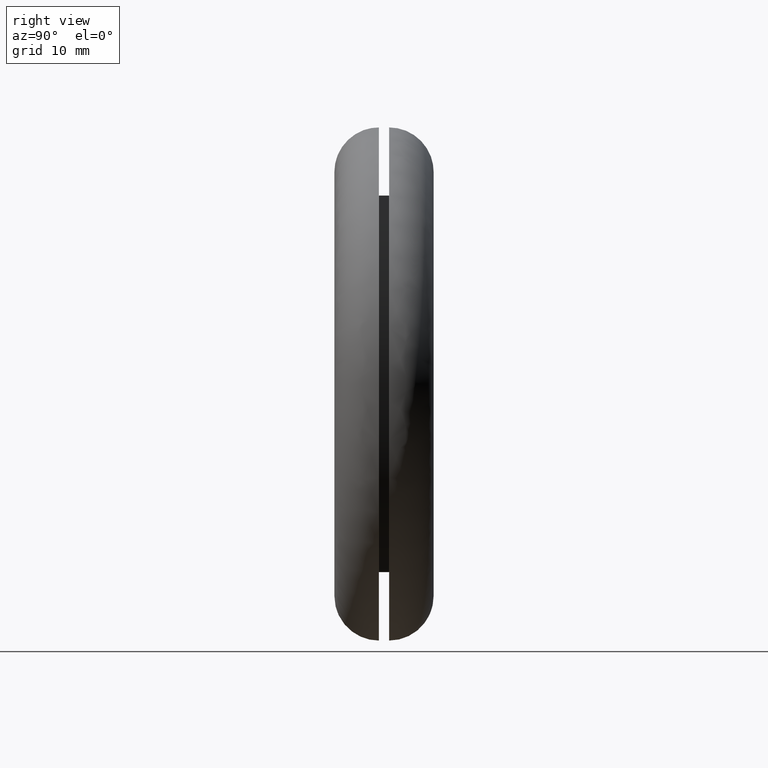
[diagram: clean part render]
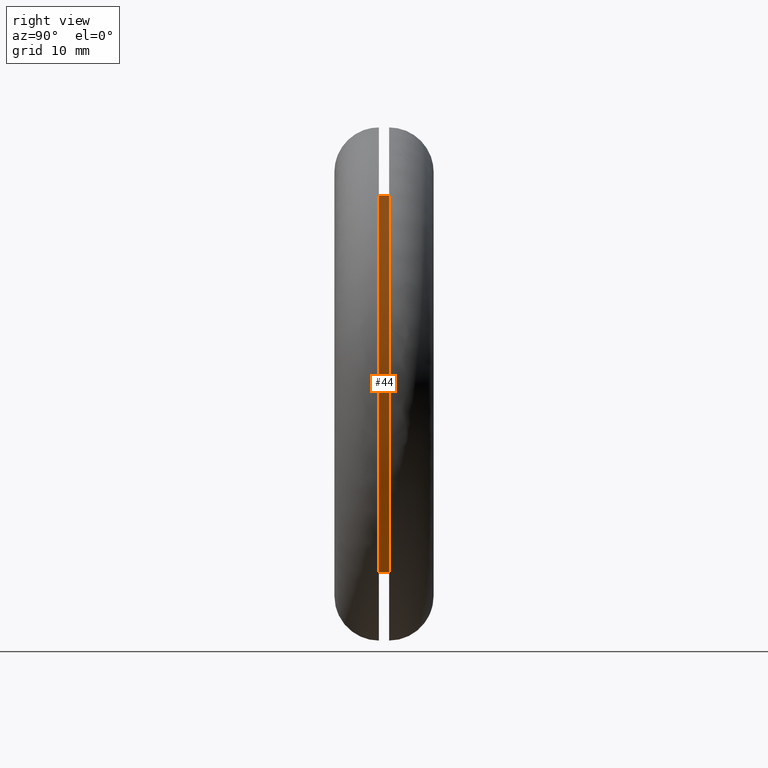
[diagram: same view with one face highlighted and labeled with its STEP entity id]
A machine part, right view. The second image highlights one B-rep face of the part: STEP entity #44.
In plain terms, the highlighted cylindrical surface (partial cylindrical patch) has radius 27.5 mm, axis along (-0, 1, 0).
Its self-contained STEP definition (entity closure, byte-faithful):
#44=ADVANCED_FACE('',(#97),#96,.T.);
#96=CYLINDRICAL_SURFACE('',#203,2.75000000000E+001);
#97=FACE_OUTER_BOUND('',#204,.T.);
#200=CARTESIAN_POINT('',(0.00000000000E+000,7.25000000000E+000,0.00000000000E+000));
#201=DIRECTION('',(-0.00000000000E+000,1.00000000000E+000,0.00000000000E+000));
#202=DIRECTION('',(0.00000000000E+000,-0.00000000000E+000,1.00000000000E+000));
#203=AXIS2_PLACEMENT_3D('',#200,#201,#202);
#204=EDGE_LOOP('',(#340,#341,#342,#343));
#340=ORIENTED_EDGE('',*,*,#383,.F.);
#341=ORIENTED_EDGE('',*,*,#388,.F.);
#342=ORIENTED_EDGE('',*,*,#375,.T.);
#343=ORIENTED_EDGE('',*,*,#389,.T.);
#375=EDGE_CURVE('',#411,#410,#418,.T.);
#383=EDGE_CURVE('',#467,#466,#474,.T.);
#388=EDGE_CURVE('',#411,#467,#508,.T.);
#389=EDGE_CURVE('',#410,#466,#514,.T.);
#410=VERTEX_POINT('',#566);
#411=VERTEX_POINT('',#567);
#418=CIRCLE('',#575,2.75000000000E+001);
#466=VERTEX_POINT('',#606);
#467=VERTEX_POINT('',#607);
#474=CIRCLE('',#615,2.75000000000E+001);
#508=(BOUNDED_CURVE() B_SPLINE_CURVE(1,(#636,#637),.UNSPECIFIED.,.F.,.F.) B_SPLINE_CURVE_WITH_KNOTS((2,2),(8.33333134656E-002,9.16666653270E-001),.UNSPECIFIED.) CURVE() GEOMETRIC_REPRESENTATION_ITEM() RATIONAL_B_SPLINE_CURVE((1.00000000000E+000,1.00000000000E+000)) REPRESENTATION_ITEM('') );
#514=(BOUNDED_CURVE() B_SPLINE_CURVE(1,(#638,#639),.UNSPECIFIED.,.F.,.F.) B_SPLINE_CURVE_WITH_KNOTS((2,2),(8.33333333333E-002,9.16666666667E-001),.UNSPECIFIED.) CURVE() GEOMETRIC_REPRESENTATION_ITEM() RATIONAL_B_SPLINE_CURVE((7.50000000000E-001,7.50000000000E-001)) REPRESENTATION_ITEM('') );
#566=CARTESIAN_POINT('',(0.00000000000E+000,6.50000000000E+000,-2.75000000000E+001));
#567=CARTESIAN_POINT('',(-4.55190536594E-015,6.50000000000E+000,2.75000000000E+001));
#572=CARTESIAN_POINT('',(0.00000000000E+000,6.50000000000E+000,0.00000000000E+000));
#573=DIRECTION('',(0.00000000000E+000,1.00000000000E+000,0.00000000000E+000));
#574=DIRECTION('',(-4.30631961065E-017,-0.00000000000E+000,1.00000000000E+000));
#575=AXIS2_PLACEMENT_3D('',#572,#573,#574);
#606=CARTESIAN_POINT('',(3.36766747301E-015,8.00000000000E+000,-2.75000000000E+001));
#607=CARTESIAN_POINT('',(1.18423789293E-015,8.00000000000E+000,2.75000000000E+001));
#612=CARTESIAN_POINT('',(0.00000000000E+000,8.00000000000E+000,0.00000000000E+000));
#613=DIRECTION('',(0.00000000000E+000,1.00000000000E+000,-0.00000000000E+000));
#614=DIRECTION('',(-0.00000000000E+000,-0.00000000000E+000,-1.00000000000E+000));
#615=AXIS2_PLACEMENT_3D('',#612,#613,#614);
#636=CARTESIAN_POINT('',(0.00000000000E+000,6.49999996424E+000,2.75000000000E+001));
#637=CARTESIAN_POINT('',(0.00000000000E+000,7.99999997589E+000,2.75000000000E+001));
#638=CARTESIAN_POINT('',(0.00000000000E+000,6.50000000000E+000,-2.75000000000E+001));
#639=CARTESIAN_POINT('',(0.00000000000E+000,8.00000000000E+000,-2.75000000000E+001));